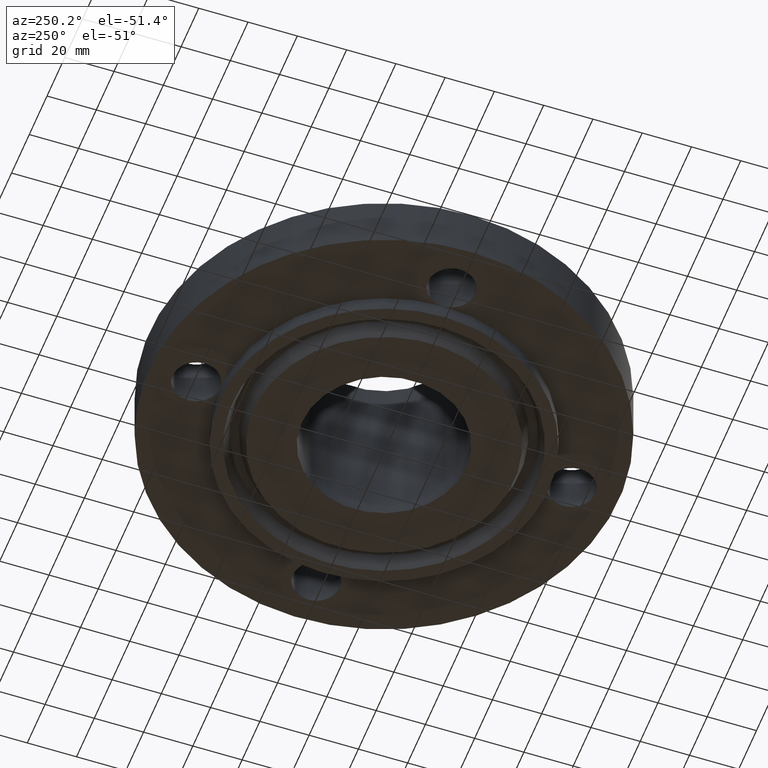
[diagram: clean part render]
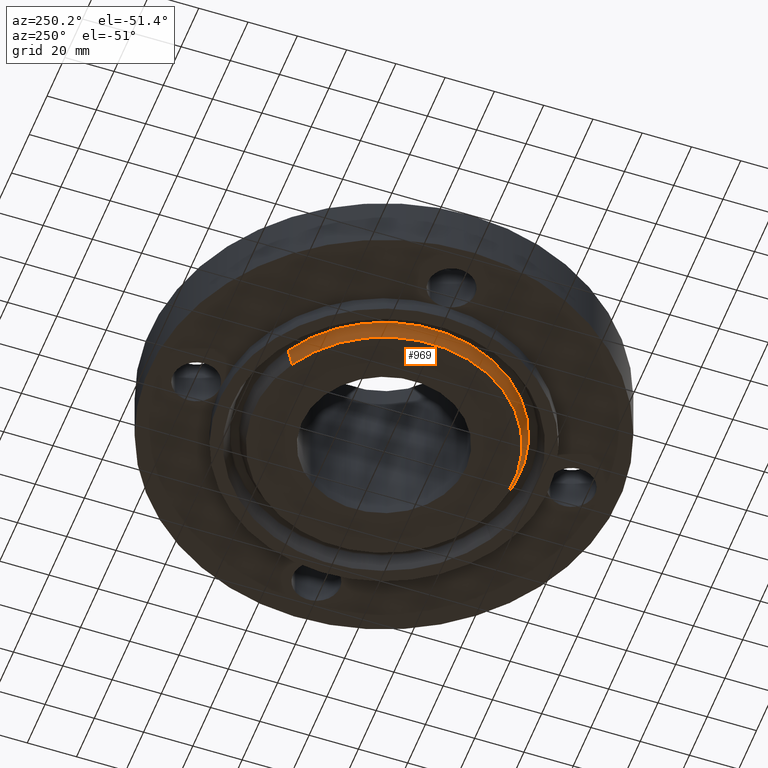
[diagram: same view with one face highlighted and labeled with its STEP entity id]
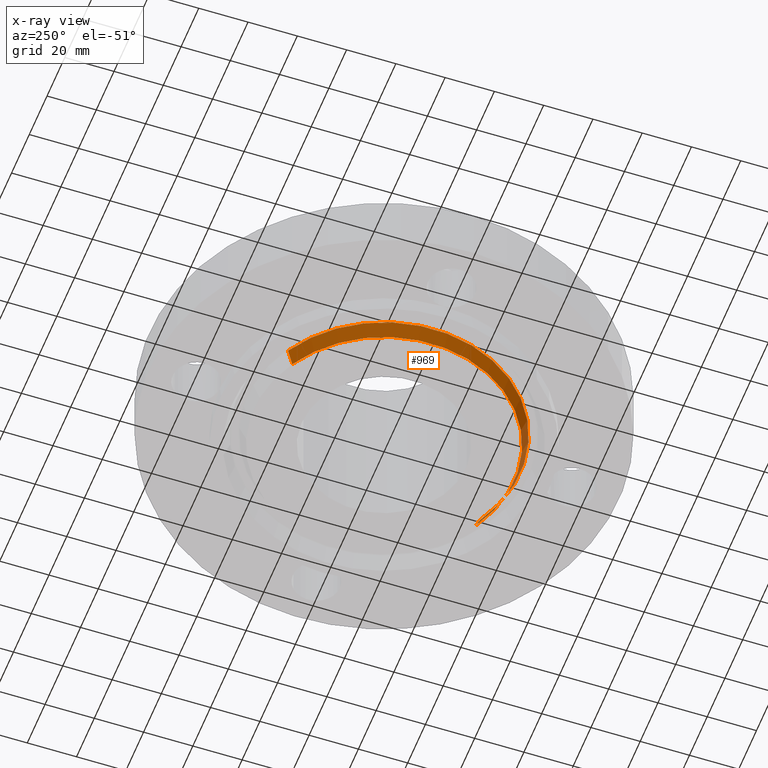
[diagram: x-ray of the same camera — body ghosted, the highlighted face saturated]
A machine part, auxiliary view. The second image highlights one B-rep face of the part: STEP entity #969.
The next image is the same camera in x-ray: the body ghosted, the highlighted face saturated — about 0% of this face is hidden behind the body in this view.
In plain terms, the highlighted conical surface has half-angle 23 deg.
Its self-contained STEP definition (entity closure, byte-faithful):
#777=AXIS2_PLACEMENT_3D('Circle Axis2P3D',#775,#776,$) ;
#931=AXIS2_PLACEMENT_3D('Circle Axis2P3D',#929,#930,$) ;
#944=AXIS2_PLACEMENT_3D('Cone Axis2P3D',#941,#942,#943) ;
#770=CARTESIAN_POINT('Vertex',(-0.996306197416,1.82372626144,-0.250000000001)) ;
#772=CARTESIAN_POINT('Vertex',(0.996306197416,-1.82372626144,-0.250000000001)) ;
#775=CARTESIAN_POINT('Axis2P3D Location',(-5.59482469102E-016,0.,-0.250000000001)) ;
#907=CARTESIAN_POINT('Vertex',(1.04330756759,-1.90976169244,-0.0190396522348)) ;
#914=CARTESIAN_POINT('Vertex',(-1.04330756759,1.90976169244,-0.0190396522348)) ;
#929=CARTESIAN_POINT('Axis2P3D Location',(0.,0.,-0.0190396522348)) ;
#941=CARTESIAN_POINT('Axis2P3D Location',(0.,0.,-0.310000000001)) ;
#946=CARTESIAN_POINT('Line Origine',(-1.0198068825,1.86674397694,-0.134519826118)) ;
#951=CARTESIAN_POINT('Line Origine',(1.0198068825,-1.86674397694,-0.134519826118)) ;
#776=DIRECTION('Axis2P3D Direction',(0.,0.,-0.0393700787402)) ;
#930=DIRECTION('Axis2P3D Direction',(0.,0.,0.0393700787402)) ;
#942=DIRECTION('Axis2P3D Direction',(0.,0.,0.0393700787402)) ;
#943=DIRECTION('Axis2P3D XDirection',(-0.0188750212049,0.0345504945626,0.)) ;
#947=DIRECTION('Vector Direction',(-0.00737505833565,0.0134999537303,0.0362403485611)) ;
#952=DIRECTION('Vector Direction',(0.00737505833565,-0.0134999537303,0.0362403485611)) ;
#948=VECTOR('Line Direction',#947,0.0393700787402) ;
#953=VECTOR('Line Direction',#952,0.0393700787402) ;
#964=ORIENTED_EDGE('',*,*,#955,.F.) ;
#965=ORIENTED_EDGE('',*,*,#933,.F.) ;
#966=ORIENTED_EDGE('',*,*,#950,.T.) ;
#967=ORIENTED_EDGE('',*,*,#779,.F.) ;
#969=ADVANCED_FACE('PartBody',(#968),#945,.T.) ;
#778=CIRCLE('generated circle',#777,2.07812500001) ;
#932=CIRCLE('generated circle',#931,2.17616185118) ;
#945=CONICAL_SURFACE('Cone',#944,2.05265651104,0.401425727959) ;
#779=EDGE_CURVE('',#773,#771,#778,.T.) ;
#933=EDGE_CURVE('',#915,#908,#932,.T.) ;
#950=EDGE_CURVE('',#915,#771,#949,.F.) ;
#955=EDGE_CURVE('',#908,#773,#954,.F.) ;
#963=EDGE_LOOP('',(#964,#965,#966,#967)) ;
#968=FACE_OUTER_BOUND('',#963,.T.) ;
#949=LINE('Line',#946,#948) ;
#954=LINE('Line',#951,#953) ;
#771=VERTEX_POINT('',#770) ;
#773=VERTEX_POINT('',#772) ;
#908=VERTEX_POINT('',#907) ;
#915=VERTEX_POINT('',#914) ;